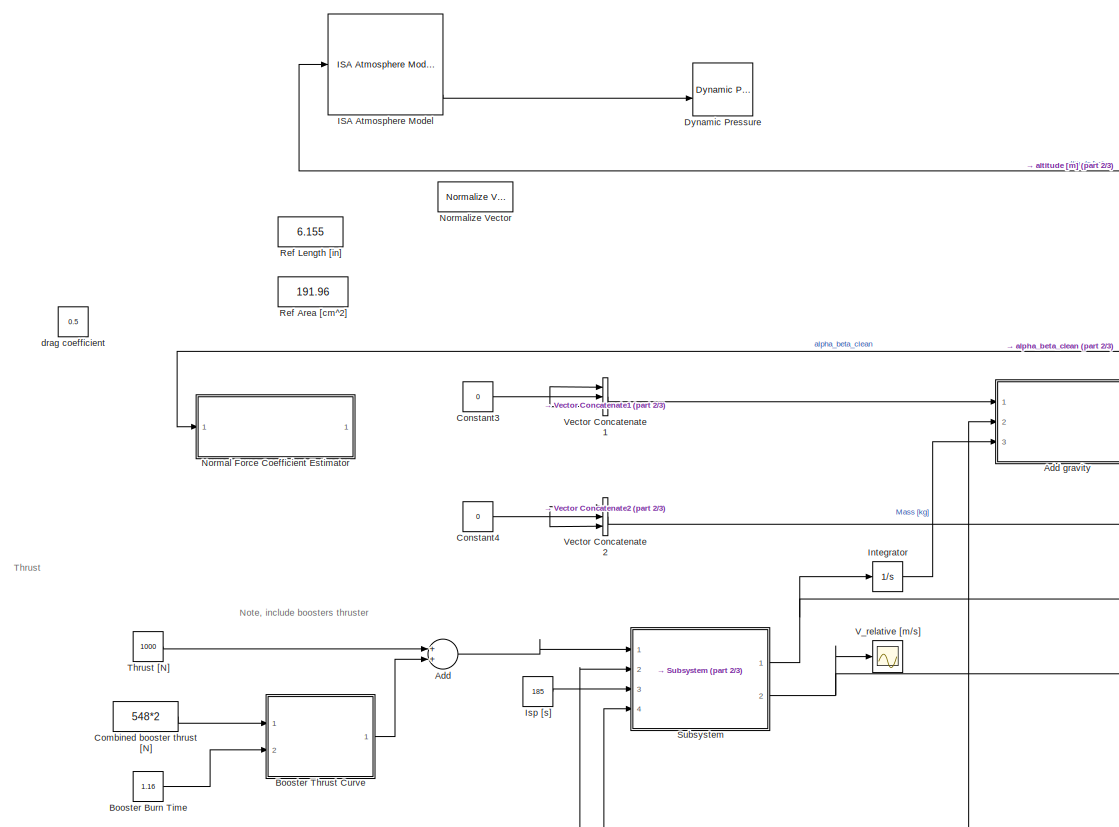
[diagram: root canvas - part 1/3, left side, full height]
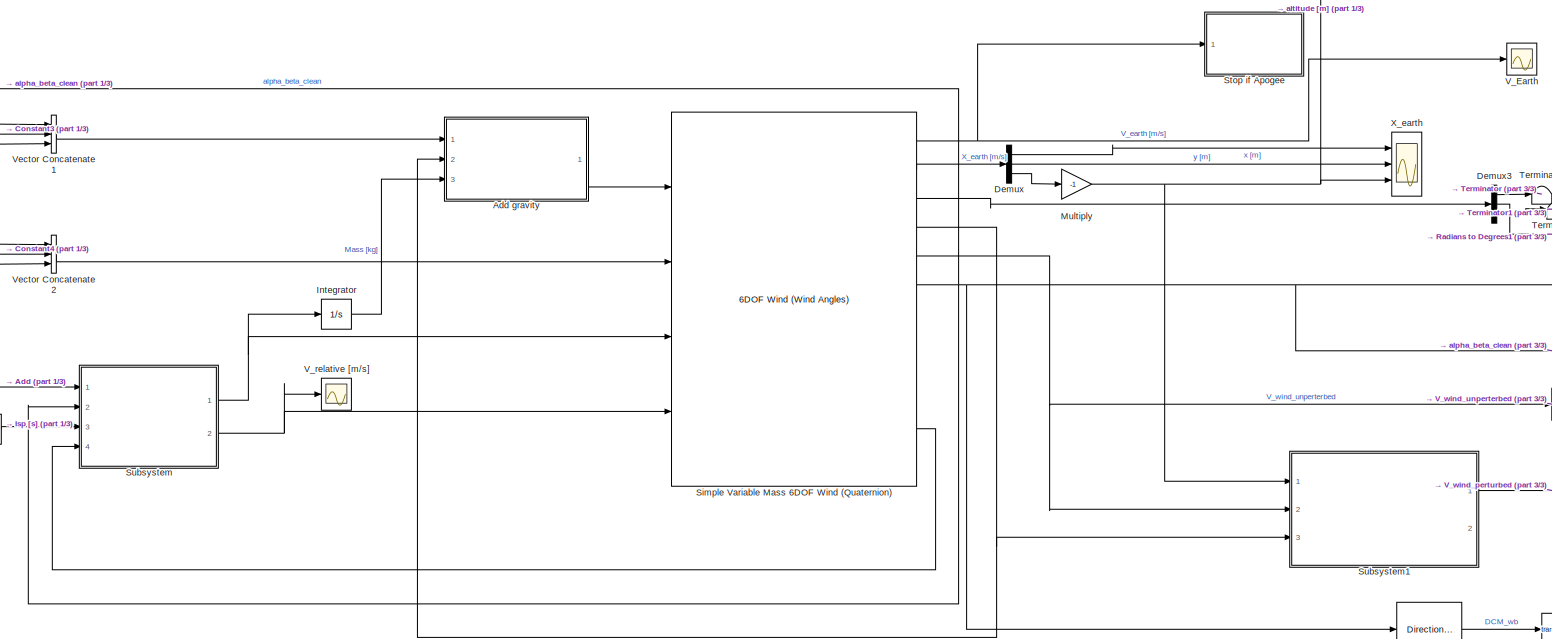
[diagram: root canvas - part 2/3, central region]
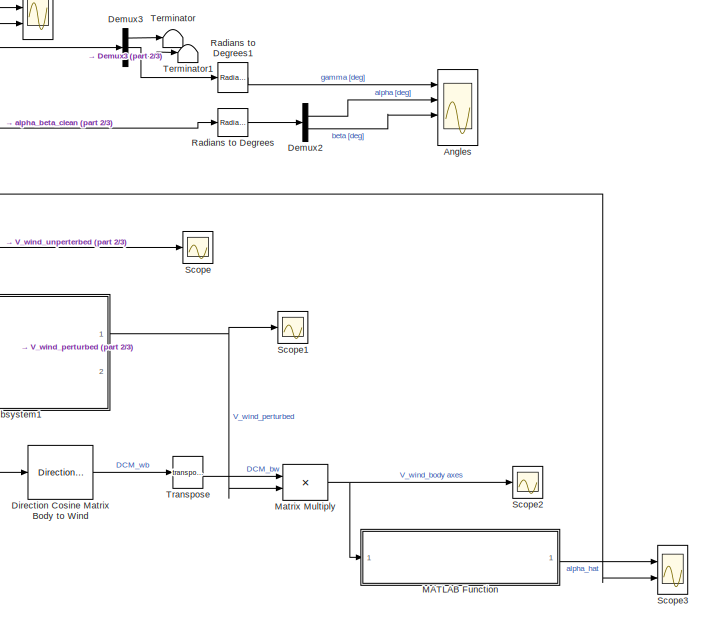
[diagram: root canvas - part 3/3, bottom right region]
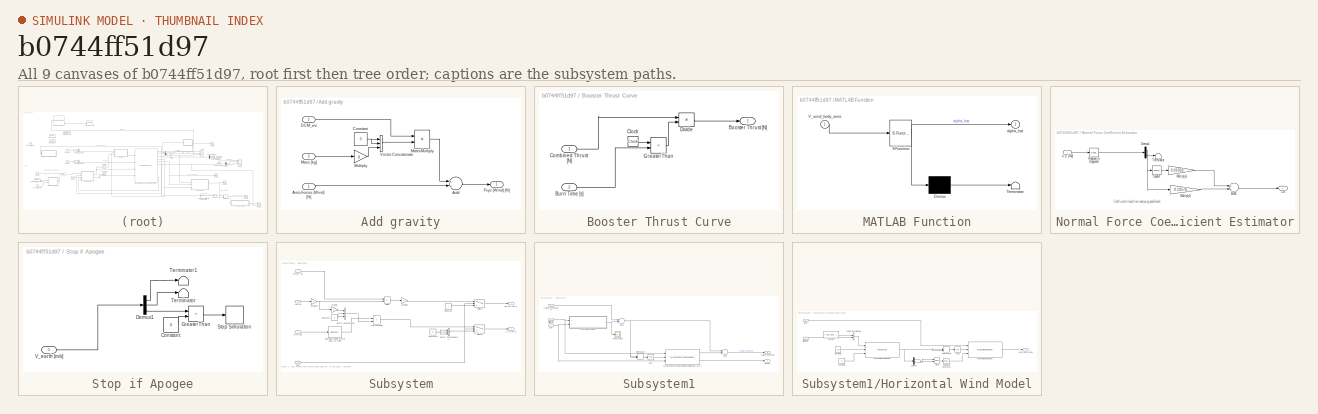
[diagram: thumbnail index - all 9 canvases of the model, root first then tree order]
MODEL slx_b0744ff51d97
KIND model
CONFIG AbsTol = auto
CONFIG EnableMultiTasking = off
CONFIG FixedStep = auto
CONFIG InitFcn = Sporadic_Impulse_6DOF_init
CONFIG MaxStep = auto
CONFIG MinStep = auto
CONFIG RelTol = 1e-3
CONFIG SampleTimeConstraint = Unconstrained
CONFIG Solver = VariableStepAuto
CONFIG SolverName = VariableStepAuto
CONFIG StartTime = 0.0
CONFIG StopTime = 40
BLOCK [Sum] Add
  InputSameDT = off
  OutDataTypeStr = Inherit: Inherit via internal rule
  Ports = [2, 1]
  SaturateOnIntegerOverflow = off
BLOCK [SubSystem] Add gravity
  Ports = [3, 1]
  RequestExecContextInheritance = off
BLOCK [Sum] Add gravity/Add
  InputSameDT = off
  OutDataTypeStr = Inherit: Inherit via internal rule
  Ports = [2, 1]
  SaturateOnIntegerOverflow = off
BLOCK [Inport] Add gravity/Aero-Forces (Wind) [N]
  IconDisplay = Port number
BLOCK [Constant] Add gravity/Constant
  Value = 0
BLOCK [Inport] Add gravity/DCM_we
  IconDisplay = Port number
  Port = 2
BLOCK [Outport] Add gravity/Fxyz (Wind) [N]
  IconDisplay = Port number
BLOCK [Inport] Add gravity/Mass [kg]
  IconDisplay = Port number
  Port = 3
BLOCK [Product] Add gravity/MatrixMultiply
  InputSameDT = off
  Multiplication = Matrix(*)
  OutDataTypeStr = Inherit: Inherit via internal rule
  Ports = [2, 1]
  RndMeth = Floor
  SaturateOnIntegerOverflow = off
BLOCK [Gain] Add gravity/Multiply
  Gain = g
  OutDataTypeStr = Inherit: Inherit via internal rule
  ParamDataTypeStr = Inherit: Inherit via internal rule
  SaturateOnIntegerOverflow = off
BLOCK [Concatenate] Add gravity/Vector Concatenate
  NumInputs = 3
  Ports = [3, 1]
BLOCK [Scope] Angles
  Floating = off
  NumInputPorts = 4
  Ports = [4]
  ScopeSpecificationString = Simulink.scopes.TimeScopeBlockCfg('CurrentConfiguration', extmgr.ConfigurationSet(extmgr.Configuration('Core','General UI',true),extmgr.Configuration('Core','Source UI',true),extmgr.Configuration('Sources','WiredSimulink',true,'DataLoggingVariableName','ScopeData3'),extmgr.Configuration('Visuals','Time Domain',true,'SerializedDisplays',{struct('MinYLimReal','-10.5','MaxYLimReal','94.5','YLabelReal...<+1389ch>
BLOCK [Constant] Booster Burn Time
  Value = 1.16
BLOCK [SubSystem] Booster Thrust Curve
  Ports = [2, 1]
  RequestExecContextInheritance = off
BLOCK [Outport] Booster Thrust Curve/Booster Thrust [N]
  IconDisplay = Port number
BLOCK [Inport] Booster Thrust Curve/Burn Time [s]
  IconDisplay = Port number
  Port = 2
BLOCK [Clock] Booster Thrust Curve/Clock
BLOCK [Inport] Booster Thrust Curve/Combined Thrust [N]
  IconDisplay = Port number
BLOCK [Product] Booster Thrust Curve/Divide
  InputSameDT = off
  Inputs = **
  OutDataTypeStr = Inherit: Inherit via internal rule
  Ports = [2, 1]
  RndMeth = Floor
  SaturateOnIntegerOverflow = off
BLOCK [RelationalOperator] Booster Thrust Curve/GreaterThan
  InputSameDT = off
  Operator = <
  OutDataTypeStr = boolean
  Ports = [2, 1]
  RndMeth = Simplest
BLOCK [Constant] Combined booster thrust [N]
  Value = 548*2
BLOCK [Constant] Constant3
  Value = 0
BLOCK [Constant] Constant4
  Value = 0
BLOCK [Demux] Demux
  DisplayOption = bar
  Outputs = 3
  Ports = [1, 3]
BLOCK [Demux] Demux2
  DisplayOption = bar
  Outputs = 2
  Ports = [1, 2]
BLOCK [Demux] Demux3
  DisplayOption = bar
  Outputs = 3
  Ports = [1, 3]
BLOCK [Reference] Direction Cosine Matrix Body to Wind  REF=aerolibtransform2/Direction Cosine Matrix
Body to Wind
  Ports = [1, 1]
  SourceBlock = aerolibtransform2/Direction Cosine Matrix\nBody to Wind
  SourceProductBaseCode = AE
  SourceProductName = Aerospace Blockset
  SourceType = DCM Body to Wind
BLOCK [Reference] Dynamic Pressure  REF=aerolibasang/Dynamic Pressure
  Ports = [2, 1]
  SourceBlock = aerolibasang/Dynamic Pressure
  SourceProductBaseCode = AE
  SourceProductName = Aerospace Blockset
  SourceType = Dynamic Pressure
BLOCK [Reference] ISA Atmosphere Model  REF=aerolibatmos2/ISA Atmosphere Model
  Ports = [1, 4]
  SourceBlock = aerolibatmos2/ISA Atmosphere Model
  SourceProductBaseCode = AE
  SourceProductName = Aerospace Blockset
  SourceType = International Standard Atmosphere Model
BLOCK [Integrator] Integrator
  InitialCondition = m_0
  Ports = [1, 1]
BLOCK [Constant] Isp [s]
  Value = 185
BLOCK [SubSystem] MATLAB Function
  ErrorFcn = Stateflow.Translate.translate
  PermitHierarchicalResolution = ExplicitOnly
  Ports = [1, 1]
  RequestExecContextInheritance = off
  SFBlockType = MATLAB Function
  TreatAsAtomicUnit = on
BLOCK [Demux] MATLAB Function/ Demux 
  Outputs = 1
  Ports = [1, 1]
BLOCK [S-Function] MATLAB Function/ SFunction 
  EnableBusSupport = on
  FunctionName = sf_sfun
  PortCounts = [1 2]
  Ports = [1, 2]
  SFcnIsStateOwnerBlock = off
  SFunctionDeploymentMode = off
  Tag = Stateflow S-Function SporadicImpulse_6DOF 2
BLOCK [Terminator] MATLAB Function/ Terminator 
BLOCK [Inport] MATLAB Function/V_wind_body_axes
  IconDisplay = Port number
BLOCK [Outport] MATLAB Function/alpha_hat
  IconDisplay = Port number
BLOCK [Product] Matrix Multiply
  InputSameDT = off
  Multiplication = Matrix(*)
  OutDataTypeStr = Inherit: Inherit via internal rule
  Ports = [2, 1]
  RndMeth = Floor
  SaturateOnIntegerOverflow = off
BLOCK [Gain] Multiply
  Gain = -1
  OutDataTypeStr = Inherit: Inherit via internal rule
  ParamDataTypeStr = Inherit: Inherit via internal rule
  SaturateOnIntegerOverflow = off
BLOCK [SubSystem] Normal Force Coefficient Estimator
  Ports = [1, 1]
  RequestExecContextInheritance = off
BLOCK [Sum] Normal Force Coefficient Estimator/Add1
  InputSameDT = off
  OutDataTypeStr = Inherit: Inherit via internal rule
  Ports = [2, 1]
  SaturateOnIntegerOverflow = off
BLOCK [Outport] Normal Force Coefficient Estimator/CN
  IconDisplay = Port number
BLOCK [Demux] Normal Force Coefficient Estimator/Demux1
  DisplayOption = bar
  Outputs = 2
  Ports = [1, 2]
BLOCK [Gain] Normal Force Coefficient Estimator/Multiply1
  Gain = 0.0100205
  OutDataTypeStr = Inherit: Inherit via internal rule
  ParamDataTypeStr = Inherit: Inherit via internal rule
  SaturateOnIntegerOverflow = off
BLOCK [Gain] Normal Force Coefficient Estimator/Multiply2
  Gain = 0.19576308
  OutDataTypeStr = Inherit: Inherit via internal rule
  ParamDataTypeStr = Inherit: Inherit via internal rule
  SaturateOnIntegerOverflow = off
BLOCK [Reference] Normal Force Coefficient Estimator/Radians to Degrees2  REF=simulink_extras/Transformations/Radians
to Degrees
  Ports = [1, 1]
  SourceBlock = simulink_extras/Transformations/Radians\nto Degrees
  SourceProductBaseCode = SL
  SourceProductName = Simulink
  SourceType = RadiansToDegrees
BLOCK [Math] Normal Force Coefficient Estimator/Square
  Operator = square
  Ports = [1, 1]
BLOCK [Terminator] Normal Force Coefficient Estimator/Terminator
BLOCK [Inport] Normal Force Coefficient Estimator/α β [rad]
  IconDisplay = Port number
BLOCK [Reference] Normalize Vector  REF=vrlib/Utilities/Normalize Vector
  Ports = [1, 1]
  SourceBlock = vrlib/Utilities/Normalize Vector
  SourceProductBaseCode = SL
  SourceProductName = Simulink
  SourceType = Normalize Vector
BLOCK [Reference] Radians to Degrees  REF=simulink_extras/Transformations/Radians
to Degrees
  Ports = [1, 1]
  SourceBlock = simulink_extras/Transformations/Radians\nto Degrees
  SourceProductBaseCode = SL
  SourceProductName = Simulink
  SourceType = RadiansToDegrees
BLOCK [Reference] Radians to Degrees1  REF=simulink_extras/Transformations/Radians
to Degrees
  Ports = [1, 1]
  SourceBlock = simulink_extras/Transformations/Radians\nto Degrees
  SourceProductBaseCode = SL
  SourceProductName = Simulink
  SourceType = RadiansToDegrees
BLOCK [Constant] Ref Area [cm^2]
  Value = 191.96
BLOCK [Constant] Ref Length [in]
  Value = 6.155
BLOCK [Scope] Scope
  Floating = off
  NumInputPorts = 1
  Ports = [1]
  ScopeSpecificationString = Simulink.scopes.TimeScopeBlockCfg('CurrentConfiguration', extmgr.ConfigurationSet(extmgr.Configuration('Core','General UI',true),extmgr.Configuration('Core','Source UI',true),extmgr.Configuration('Sources','WiredSimulink',true,'DataLoggingVariableName','ScopeData4'),extmgr.Configuration('Visuals','Time Domain',true,'SerializedDisplays',{struct('MinYLimReal','-61.23184','MaxYLimReal','551.08659','Y...<+1433ch>
BLOCK [Scope] Scope1
  Floating = off
  NumInputPorts = 1
  Ports = [1]
  ScopeSpecificationString = Simulink.scopes.TimeScopeBlockCfg('CurrentConfiguration', extmgr.ConfigurationSet(extmgr.Configuration('Core','General UI',true),extmgr.Configuration('Core','Source UI',true),extmgr.Configuration('Sources','WiredSimulink',true,'DataLoggingVariableName','ScopeData5'),extmgr.Configuration('Visuals','Time Domain',true,'SerializedDisplays',{struct('MinYLimReal','-76.01381','MaxYLimReal','552.95675','Y...<+1455ch>
BLOCK [Scope] Scope2
  Floating = off
  NumInputPorts = 1
  Ports = [1]
  ScopeSpecificationString = Simulink.scopes.TimeScopeBlockCfg('CurrentConfiguration', extmgr.ConfigurationSet(extmgr.Configuration('Core','General UI',true),extmgr.Configuration('Core','Source UI',true),extmgr.Configuration('Sources','WiredSimulink',true,'DataLoggingVariableName','ScopeData1'),extmgr.Configuration('Visuals','Time Domain',true,'SerializedDisplays',{struct('MinYLimReal','-75.95805','MaxYLimReal','552.45493','Y...<+1453ch>
BLOCK [Scope] Scope3
  Floating = off
  NumInputPorts = 2
  Ports = [2]
  ScopeSpecificationString = Simulink.scopes.TimeScopeBlockCfg('CurrentConfiguration', extmgr.ConfigurationSet(extmgr.Configuration('Core','General UI',true),extmgr.Configuration('Core','Source UI',true),extmgr.Configuration('Sources','WiredSimulink',true,'DataLoggingVariableName','ScopeData2'),extmgr.Configuration('Visuals','Time Domain',true,'SerializedDisplays',{struct('MinYLimReal','-0.19409','MaxYLimReal','1.74681','YLab...<+1521ch>
BLOCK [Reference] Simple Variable Mass 6DOF Wind (Quaternion)  REF=aerolib6dof2/6DOF Wind (Wind Angles)
  Ports = [4, 12]
  SourceBlock = aerolib6dof2/6DOF Wind (Wind Angles)
  SourceProductBaseCode = AE
  SourceProductName = Aerospace Blockset
  SourceType = 6DOF EoM (Wind Axis)
BLOCK [SubSystem] Stop if Apogee
  Ports = [1]
  RequestExecContextInheritance = off
BLOCK [Constant] Stop if Apogee/Constant
  Value = 0
BLOCK [Demux] Stop if Apogee/Demux1
  DisplayOption = bar
  Outputs = 3
  Ports = [1, 3]
BLOCK [RelationalOperator] Stop if Apogee/GreaterThan
  InputSameDT = off
  Operator = >
  OutDataTypeStr = boolean
  Ports = [2, 1]
  RndMeth = Simplest
BLOCK [Stop] Stop if Apogee/Stop Simulation
BLOCK [Terminator] Stop if Apogee/Terminator
BLOCK [Terminator] Stop if Apogee/Terminator1
BLOCK [Inport] Stop if Apogee/V_earth [m//s]
  IconDisplay = Port number
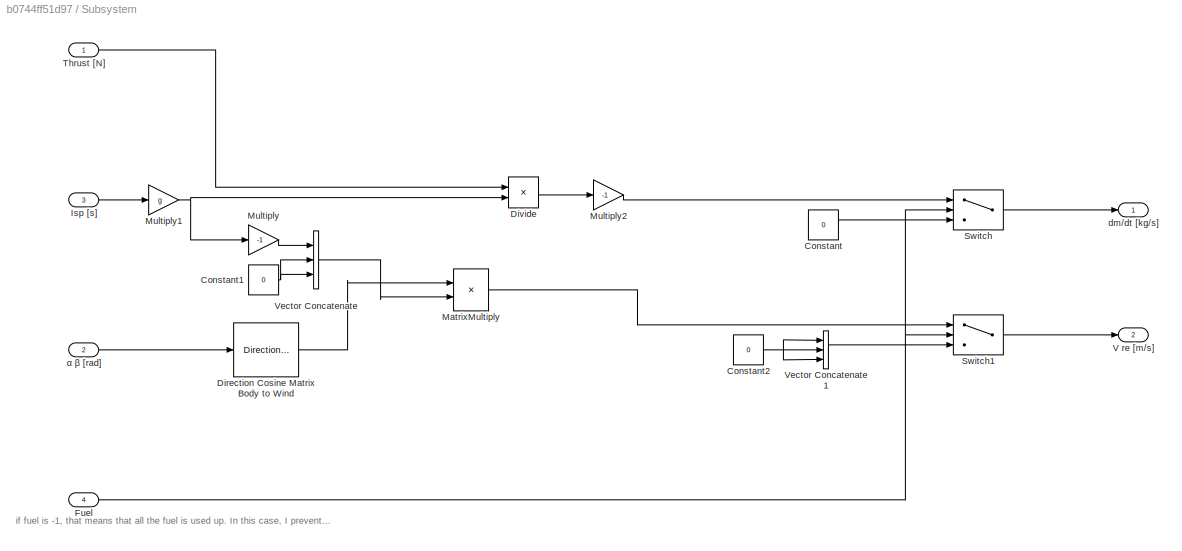
BLOCK [SubSystem] Subsystem
  Ports = [4, 2]
  RequestExecContextInheritance = off
BLOCK [Constant] Subsystem/Constant
  Value = 0
BLOCK [Constant] Subsystem/Constant1
  Value = 0
BLOCK [Constant] Subsystem/Constant2
  Value = 0
BLOCK [Reference] Subsystem/Direction Cosine Matrix Body to Wind  REF=aerolibtransform2/Direction Cosine Matrix
Body to Wind
  Ports = [1, 1]
  SourceBlock = aerolibtransform2/Direction Cosine Matrix\nBody to Wind
  SourceProductBaseCode = AE
  SourceProductName = Aerospace Blockset
  SourceType = DCM Body to Wind
BLOCK [Product] Subsystem/Divide
  InputSameDT = off
  Inputs = */
  OutDataTypeStr = Inherit: Inherit via internal rule
  Ports = [2, 1]
  RndMeth = Floor
  SaturateOnIntegerOverflow = off
BLOCK [Inport] Subsystem/Fuel
  IconDisplay = Port number
  Port = 4
BLOCK [Inport] Subsystem/Isp [s]
  IconDisplay = Port number
  Port = 3
BLOCK [Product] Subsystem/MatrixMultiply
  InputSameDT = off
  Multiplication = Matrix(*)
  OutDataTypeStr = Inherit: Inherit via internal rule
  Ports = [2, 1]
  RndMeth = Floor
  SaturateOnIntegerOverflow = off
BLOCK [Gain] Subsystem/Multiply
  Gain = -1
  OutDataTypeStr = Inherit: Inherit via internal rule
  ParamDataTypeStr = Inherit: Inherit via internal rule
  SaturateOnIntegerOverflow = off
BLOCK [Gain] Subsystem/Multiply1
  Gain = g
  OutDataTypeStr = Inherit: Inherit via internal rule
  ParamDataTypeStr = Inherit: Inherit via internal rule
  SaturateOnIntegerOverflow = off
BLOCK [Gain] Subsystem/Multiply2
  Gain = -1
  OutDataTypeStr = Inherit: Inherit via internal rule
  ParamDataTypeStr = Inherit: Inherit via internal rule
  SaturateOnIntegerOverflow = off
BLOCK [Switch] Subsystem/Switch
  Criteria = u2 > Threshold
  InputSameDT = off
  SaturateOnIntegerOverflow = off
  Threshold = -1
BLOCK [Switch] Subsystem/Switch1
  Criteria = u2 > Threshold
  InputSameDT = off
  SaturateOnIntegerOverflow = off
  Threshold = -1
BLOCK [Inport] Subsystem/Thrust [N]
  IconDisplay = Port number
BLOCK [Outport] Subsystem/V re [m//s]
  IconDisplay = Port number
  Port = 2
BLOCK [Concatenate] Subsystem/Vector Concatenate
  NumInputs = 3
  Ports = [3, 1]
BLOCK [Concatenate] Subsystem/Vector Concatenate1
  NumInputs = 3
  Ports = [3, 1]
BLOCK [Outport] Subsystem/dm//dt [kg//s]
  IconDisplay = Port number
BLOCK [Inport] Subsystem/α β [rad]
  IconDisplay = Port number
  Port = 2
BLOCK [SubSystem] Subsystem1
  Ports = [3, 2]
  RequestExecContextInheritance = off
BLOCK [Sum] Subsystem1/Add1
  InputSameDT = off
  OutDataTypeStr = Inherit: Inherit via internal rule
  Ports = [2, 1]
  SaturateOnIntegerOverflow = off
BLOCK [Sum] Subsystem1/Add2
  InputSameDT = off
  OutDataTypeStr = Inherit: Inherit via internal rule
  Ports = [2, 1]
  SaturateOnIntegerOverflow = off
BLOCK [Inport] Subsystem1/DCM
  IconDisplay = Port number
  Port = 3
BLOCK [DotProduct] Subsystem1/Dot Product
  OutDataTypeStr = Inherit: Inherit via internal rule
BLOCK [Reference] Subsystem1/Dryden Wind Turbulence Model (Continuous (+q +r))  REF=aerolibwind2/Dryden Wind Turbulence Model 
(Continuous (+q -r))
  Ports = [3, 2]
  SourceBlock = aerolibwind2/Dryden Wind Turbulence Model \n(Continuous (+q -r))
  SourceProductBaseCode = AE
  SourceProductName = Aerospace Blockset
  SourceType = Wind Turbulence Model
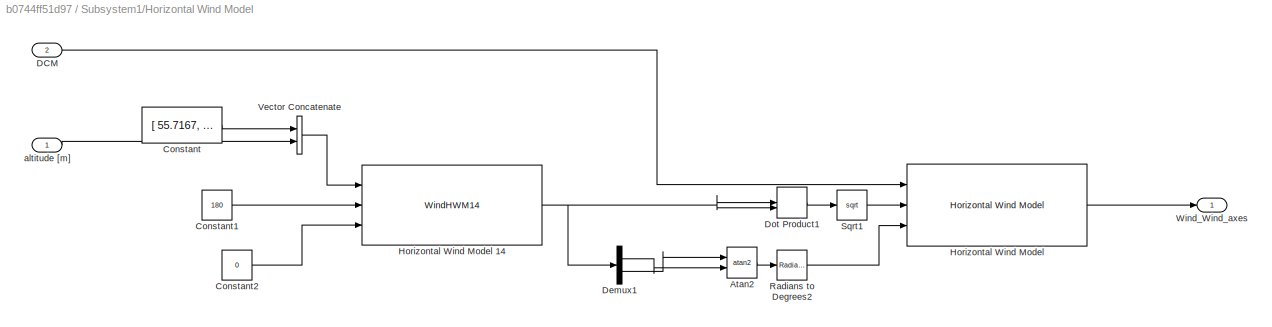
BLOCK [SubSystem] Subsystem1/Horizontal Wind Model
  Ports = [2, 1]
  RequestExecContextInheritance = off
BLOCK [Trigonometry] Subsystem1/Horizontal Wind Model/Atan2
  Operator = atan2
  Ports = [2, 1]
BLOCK [Constant] Subsystem1/Horizontal Wind Model/Constant
  Value = [ 55.7167, -4.8]
BLOCK [Constant] Subsystem1/Horizontal Wind Model/Constant1
  Value = 180
BLOCK [Constant] Subsystem1/Horizontal Wind Model/Constant2
  Value = 0
BLOCK [Inport] Subsystem1/Horizontal Wind Model/DCM
  IconDisplay = Port number
  Port = 2
BLOCK [Demux] Subsystem1/Horizontal Wind Model/Demux1
  DisplayOption = bar
  Outputs = 2
  Ports = [1, 2]
BLOCK [DotProduct] Subsystem1/Horizontal Wind Model/Dot Product1
  OutDataTypeStr = Inherit: Inherit via internal rule
BLOCK [Reference] Subsystem1/Horizontal Wind Model/Horizontal Wind Model  REF=aerolibwind2/Horizontal Wind Model
  Ports = [3, 1]
  SourceBlock = aerolibwind2/Horizontal Wind Model
  SourceProductBaseCode = AE
  SourceProductName = Aerospace Blockset
  SourceType = Horizontal Wind Model
BLOCK [WindHWM14] Subsystem1/Horizontal Wind Model/Horizontal Wind Model 14
  Ports = [3, 1]
BLOCK [Reference] Subsystem1/Horizontal Wind Model/Radians to Degrees2  REF=simulink_extras/Transformations/Radians
to Degrees
  Ports = [1, 1]
  SourceBlock = simulink_extras/Transformations/Radians\nto Degrees
  SourceProductBaseCode = SL
  SourceProductName = Simulink
  SourceType = RadiansToDegrees
BLOCK [Sqrt] Subsystem1/Horizontal Wind Model/Sqrt1
BLOCK [Concatenate] Subsystem1/Horizontal Wind Model/Vector Concatenate
  Ports = [2, 1]
BLOCK [Outport] Subsystem1/Horizontal Wind Model/Wind_Wind_axes
  IconDisplay = Port number
BLOCK [Inport] Subsystem1/Horizontal Wind Model/altitude [m]
  IconDisplay = Port number
BLOCK [Sqrt] Subsystem1/Sqrt
BLOCK [Outport] Subsystem1/V_wind_perturbed
  IconDisplay = Port number
BLOCK [Inport] Subsystem1/V_wind_unperterbed
  IconDisplay = Port number
  Port = 2
BLOCK [Scope] Subsystem1/Wind_scope
  Floating = off
  NumInputPorts = 1
  Ports = [1]
  ScopeSpecificationString = Simulink.scopes.TimeScopeBlockCfg('CurrentConfiguration', extmgr.ConfigurationSet(extmgr.Configuration('Core','General UI',true),extmgr.Configuration('Core','Source UI',true),extmgr.Configuration('Sources','WiredSimulink',true,'DataLoggingVariableName','ScopeData9'),extmgr.Configuration('Visuals','Time Domain',true,'SerializedDisplays',{struct('MinYLimReal','-14.46476','MaxYLimReal','1.54131','YLa...<+1436ch>
BLOCK [Inport] Subsystem1/altitude [m]
  IconDisplay = Port number
BLOCK [Outport] Subsystem1/ω [rad//s]
  IconDisplay = Port number
  Port = 2
BLOCK [Terminator] Terminator
BLOCK [Terminator] Terminator1
BLOCK [Constant] Thrust [N]
  Value = 1000
BLOCK [Math] Transpose
  Operator = transpose
  Ports = [1, 1]
BLOCK [Scope] V_Earth
  Floating = off
  NumInputPorts = 1
  Ports = [1]
  ScopeSpecificationString = Simulink.scopes.TimeScopeBlockCfg('CurrentConfiguration', extmgr.ConfigurationSet(extmgr.Configuration('Core','General UI',true),extmgr.Configuration('Core','Source UI',true),extmgr.Configuration('Sources','WiredSimulink',true,'DataLoggingVariableName','ScopeData1'),extmgr.Configuration('Visuals','Time Domain',true,'SerializedDisplays',{struct('MinYLimReal','-554.02728','MaxYLimReal','143.42114','...<+1450ch>
BLOCK [Scope] V_relative [m//s]
  Floating = off
  NumInputPorts = 1
  Ports = [1]
  ScopeSpecificationString = Simulink.scopes.TimeScopeBlockCfg('CurrentConfiguration', extmgr.ConfigurationSet(extmgr.Configuration('Core','General UI',true),extmgr.Configuration('Core','Source UI',true),extmgr.Configuration('Sources','WiredSimulink',true,'DataLoggingVariableName','ScopeData2'),extmgr.Configuration('Visuals','Time Domain',true,'SerializedDisplays',{struct('MinYLimReal','-2052.88436','MaxYLimReal','327.45922',...<+1451ch>
BLOCK [Concatenate] Vector Concatenate1
  NumInputs = 3
  Ports = [3, 1]
BLOCK [Concatenate] Vector Concatenate2
  NumInputs = 3
  Ports = [3, 1]
BLOCK [Scope] X_earth
  Floating = off
  NumInputPorts = 3
  Ports = [3]
  ScopeSpecificationString = Simulink.scopes.TimeScopeBlockCfg('CurrentConfiguration', extmgr.ConfigurationSet(extmgr.Configuration('Core','General UI',true),extmgr.Configuration('Core','Source UI',true),extmgr.Configuration('Sources','WiredSimulink',true),extmgr.Configuration('Visuals','Time Domain',true,'SerializedDisplays',{struct('MinYLimReal','-1541.03725','MaxYLimReal','13869.33528','YLabelReal','','MinYLimMag','  0.000...<+1426ch>
BLOCK [Constant] drag coefficient
  Value = 0.5
ANNOTATION (root): Note, include boosters thruster
ANNOTATION (root): Thrust
ANNOTATION Normal Force Coefficient Estimator: Coefficients found from analysing openRocket
ANNOTATION Subsystem: if fuel is -1, that means that all the fuel is used up. In this case, I prevent any further dm/dt and vrelative, regardless of what the input is
LINE Add gravity/Add:1 -> Add gravity/Fxyz (Wind) [N]:1
LINE Add gravity/Aero-Forces (Wind) [N]:1 -> Add gravity/Add:2
NET Add gravity/Constant:1 -> Add gravity/Vector Concatenate:1, Add gravity/Vector Concatenate:2
LINE Add gravity/DCM_we:1 -> Add gravity/MatrixMultiply:1
LINE Add gravity/Mass [kg]:1 -> Add gravity/Multiply:1
LINE Add gravity/MatrixMultiply:1 -> Add gravity/Add:1
LINE Add gravity/Multiply:1 -> Add gravity/Vector Concatenate:3
LINE Add gravity/Vector Concatenate:1 -> Add gravity/MatrixMultiply:2
LINE Add gravity:1 -> Simple Variable Mass 6DOF Wind (Quaternion):1
LINE Add:1 -> Subsystem:1
LINE Booster Burn Time:1 -> Booster Thrust Curve:2
LINE Booster Thrust Curve/Burn Time [s]:1 -> Booster Thrust Curve/GreaterThan:2
LINE Booster Thrust Curve/Clock:1 -> Booster Thrust Curve/GreaterThan:1
LINE Booster Thrust Curve/Combined Thrust [N]:1 -> Booster Thrust Curve/Divide:1
LINE Booster Thrust Curve/Divide:1 -> Booster Thrust Curve/Booster Thrust [N]:1
LINE Booster Thrust Curve/GreaterThan:1 -> Booster Thrust Curve/Divide:2
LINE Booster Thrust Curve:1 -> Add:2
LINE Combined booster thrust [N]:1 -> Booster Thrust Curve:1
NET Constant3:1 -> Vector Concatenate1:1, Vector Concatenate1:2, Vector Concatenate1:3
NET Constant4:1 -> Vector Concatenate2:1, Vector Concatenate2:2, Vector Concatenate2:3
LINE Demux2:1 -> Angles:2
LINE Demux2:2 -> Angles:3
LINE Demux3:1 -> Terminator:1
LINE Demux3:2 -> Radians to Degrees1:1
LINE Demux3:3 -> Terminator1:1
LINE Demux:1 -> X_earth:1
LINE Demux:2 -> X_earth:2
LINE Demux:3 -> Multiply:1
LINE Direction Cosine Matrix Body to Wind:1 -> Transpose:1
LINE ISA Atmosphere Model:4 -> Dynamic Pressure:2
LINE Integrator:1 -> Add gravity:3
LINE Isp [s]:1 -> Subsystem:3
LINE MATLAB Function:1 -> Scope3:1
NET Matrix Multiply:1 -> MATLAB Function:1, Scope2:1
NET Multiply:1 -> ISA Atmosphere Model:1, Subsystem1:1, X_earth:3
LINE Normal Force Coefficient Estimator/Add1:1 -> Normal Force Coefficient Estimator/CN:1
NET Normal Force Coefficient Estimator/Demux1:1 -> Normal Force Coefficient Estimator/Multiply2:1, Normal Force Coefficient Estimator/Square:1
LINE Normal Force Coefficient Estimator/Demux1:2 -> Normal Force Coefficient Estimator/Terminator:1
LINE Normal Force Coefficient Estimator/Multiply1:1 -> Normal Force Coefficient Estimator/Add1:1
LINE Normal Force Coefficient Estimator/Multiply2:1 -> Normal Force Coefficient Estimator/Add1:2
LINE Normal Force Coefficient Estimator/Radians to Degrees2:1 -> Normal Force Coefficient Estimator/Demux1:1
LINE Normal Force Coefficient Estimator/Square:1 -> Normal Force Coefficient Estimator/Multiply1:1
LINE Normal Force Coefficient Estimator/α β [rad]:1 -> Normal Force Coefficient Estimator/Radians to Degrees2:1
LINE Radians to Degrees1:1 -> Angles:1
LINE Radians to Degrees:1 -> Demux2:1
NET Simple Variable Mass 6DOF Wind (Quaternion):1 -> Stop if Apogee:1, V_Earth:1
LINE Simple Variable Mass 6DOF Wind (Quaternion):11 -> Subsystem:4
LINE Simple Variable Mass 6DOF Wind (Quaternion):2 -> Demux:1
LINE Simple Variable Mass 6DOF Wind (Quaternion):3 -> Demux3:1
NET Simple Variable Mass 6DOF Wind (Quaternion):4 -> Add gravity:2, Subsystem1:3
NET Simple Variable Mass 6DOF Wind (Quaternion):5 -> Scope:1, Subsystem1:2
NET Simple Variable Mass 6DOF Wind (Quaternion):6 -> Direction Cosine Matrix Body to Wind:1, Normal Force Coefficient Estimator:1, Radians to Degrees:1, Scope3:2, Subsystem:2
LINE Stop if Apogee/Constant:1 -> Stop if Apogee/GreaterThan:2
LINE Stop if Apogee/Demux1:1 -> Stop if Apogee/Terminator1:1
LINE Stop if Apogee/Demux1:2 -> Stop if Apogee/Terminator:1
LINE Stop if Apogee/Demux1:3 -> Stop if Apogee/GreaterThan:1
LINE Stop if Apogee/GreaterThan:1 -> Stop if Apogee/Stop Simulation:1
LINE Stop if Apogee/V_earth [m//s]:1 -> Stop if Apogee/Demux1:1
NET Subsystem/Constant1:1 -> Subsystem/Vector Concatenate:2, Subsystem/Vector Concatenate:3
NET Subsystem/Constant2:1 -> Subsystem/Vector Concatenate1:1, Subsystem/Vector Concatenate1:2, Subsystem/Vector Concatenate1:3
LINE Subsystem/Constant:1 -> Subsystem/Switch:3
LINE Subsystem/Direction Cosine Matrix Body to Wind:1 -> Subsystem/MatrixMultiply:1
LINE Subsystem/Divide:1 -> Subsystem/Multiply2:1
NET Subsystem/Fuel:1 -> Subsystem/Switch1:2, Subsystem/Switch:2
LINE Subsystem/Isp [s]:1 -> Subsystem/Multiply1:1
LINE Subsystem/MatrixMultiply:1 -> Subsystem/Switch1:1
NET Subsystem/Multiply1:1 -> Subsystem/Divide:2, Subsystem/Multiply:1
LINE Subsystem/Multiply2:1 -> Subsystem/Switch:1
LINE Subsystem/Multiply:1 -> Subsystem/Vector Concatenate:1
LINE Subsystem/Switch1:1 -> Subsystem/V re [m//s]:1
LINE Subsystem/Switch:1 -> Subsystem/dm//dt [kg//s]:1
LINE Subsystem/Thrust [N]:1 -> Subsystem/Divide:1
LINE Subsystem/Vector Concatenate1:1 -> Subsystem/Switch1:3
LINE Subsystem/Vector Concatenate:1 -> Subsystem/MatrixMultiply:2
LINE Subsystem/α β [rad]:1 -> Subsystem/Direction Cosine Matrix Body to Wind:1
LINE Subsystem1/Add1:1 -> Subsystem1/V_wind_perturbed:1
NET Subsystem1/Add2:1 -> Subsystem1/Add1:1, Subsystem1/Dot Product:1, Subsystem1/Dot Product:2
NET Subsystem1/DCM:1 -> Subsystem1/Dryden Wind Turbulence Model (Continuous (+q +r)):3, Subsystem1/Horizontal Wind Model:2
LINE Subsystem1/Dot Product:1 -> Subsystem1/Sqrt:1
LINE Subsystem1/Dryden Wind Turbulence Model (Continuous (+q +r)):1 -> Subsystem1/Add1:2
LINE Subsystem1/Dryden Wind Turbulence Model (Continuous (+q +r)):2 -> Subsystem1/ω [rad//s]:1
LINE Subsystem1/Horizontal Wind Model/Atan2:1 -> Subsystem1/Horizontal Wind Model/Radians to Degrees2:1
LINE Subsystem1/Horizontal Wind Model/Constant1:1 -> Subsystem1/Horizontal Wind Model/Horizontal Wind Model 14:2
LINE Subsystem1/Horizontal Wind Model/Constant2:1 -> Subsystem1/Horizontal Wind Model/Horizontal Wind Model 14:3
LINE Subsystem1/Horizontal Wind Model/Constant:1 -> Subsystem1/Horizontal Wind Model/Vector Concatenate:1
LINE Subsystem1/Horizontal Wind Model/DCM:1 -> Subsystem1/Horizontal Wind Model/Horizontal Wind Model:1
LINE Subsystem1/Horizontal Wind Model/Demux1:1 -> Subsystem1/Horizontal Wind Model/Atan2:2
LINE Subsystem1/Horizontal Wind Model/Demux1:2 -> Subsystem1/Horizontal Wind Model/Atan2:1
LINE Subsystem1/Horizontal Wind Model/Dot Product1:1 -> Subsystem1/Horizontal Wind Model/Sqrt1:1
NET Subsystem1/Horizontal Wind Model/Horizontal Wind Model 14:1 -> Subsystem1/Horizontal Wind Model/Demux1:1, Subsystem1/Horizontal Wind Model/Dot Product1:1, Subsystem1/Horizontal Wind Model/Dot Product1:2
LINE Subsystem1/Horizontal Wind Model/Horizontal Wind Model:1 -> Subsystem1/Horizontal Wind Model/Wind_Wind_axes:1
LINE Subsystem1/Horizontal Wind Model/Radians to Degrees2:1 -> Subsystem1/Horizontal Wind Model/Horizontal Wind Model:3
LINE Subsystem1/Horizontal Wind Model/Sqrt1:1 -> Subsystem1/Horizontal Wind Model/Horizontal Wind Model:2
LINE Subsystem1/Horizontal Wind Model/Vector Concatenate:1 -> Subsystem1/Horizontal Wind Model/Horizontal Wind Model 14:1
LINE Subsystem1/Horizontal Wind Model/altitude [m]:1 -> Subsystem1/Horizontal Wind Model/Vector Concatenate:2
NET Subsystem1/Horizontal Wind Model:1 -> Subsystem1/Add2:2, Subsystem1/Wind_scope:1
LINE Subsystem1/Sqrt:1 -> Subsystem1/Dryden Wind Turbulence Model (Continuous (+q +r)):2
LINE Subsystem1/V_wind_unperterbed:1 -> Subsystem1/Add2:1
NET Subsystem1/altitude [m]:1 -> Subsystem1/Dryden Wind Turbulence Model (Continuous (+q +r)):1, Subsystem1/Horizontal Wind Model:1
NET Subsystem1:1 -> Matrix Multiply:2, Scope1:1
NET Subsystem:1 -> Integrator:1, Simple Variable Mass 6DOF Wind (Quaternion):3
NET Subsystem:2 -> Simple Variable Mass 6DOF Wind (Quaternion):4, V_relative [m//s]:1
LINE Thrust [N]:1 -> Add:1
LINE Transpose:1 -> Matrix Multiply:1
LINE Vector Concatenate1:1 -> Add gravity:1
LINE Vector Concatenate2:1 -> Simple Variable Mass 6DOF Wind (Quaternion):2
note: NET lines group one-source signal fan-out (src -> all destinations, sorted); 1:1 wires keep LINE
CHART MATLAB Function states=1 transitions=1
  STATE_LABEL 'eML_blk_kernel()'
  STATE_LABEL 'SCRIPT:\nfunction alpha_hat = get_alpha_hat(V_wind_body_axes)\n\n%alpha hat is the actual angle of incidence with the wind vector\n\n% get angle with xb \n\n\nxb = [1,0,0];\n\nalpha_hat = acos(dot(V_wind_body_axes, xb)/norm(V_wind_body_axes));\n'
